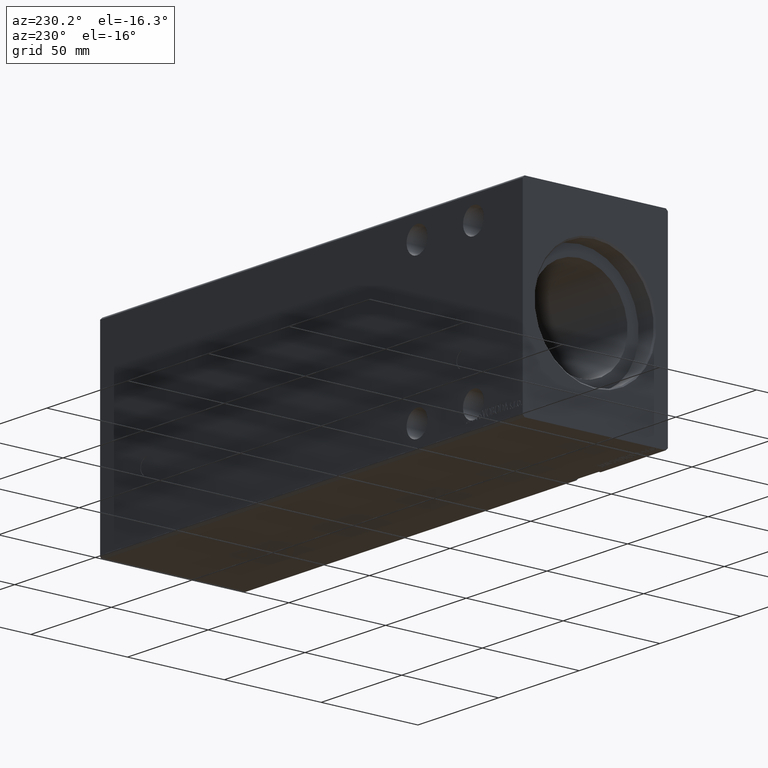
[diagram: clean part render]
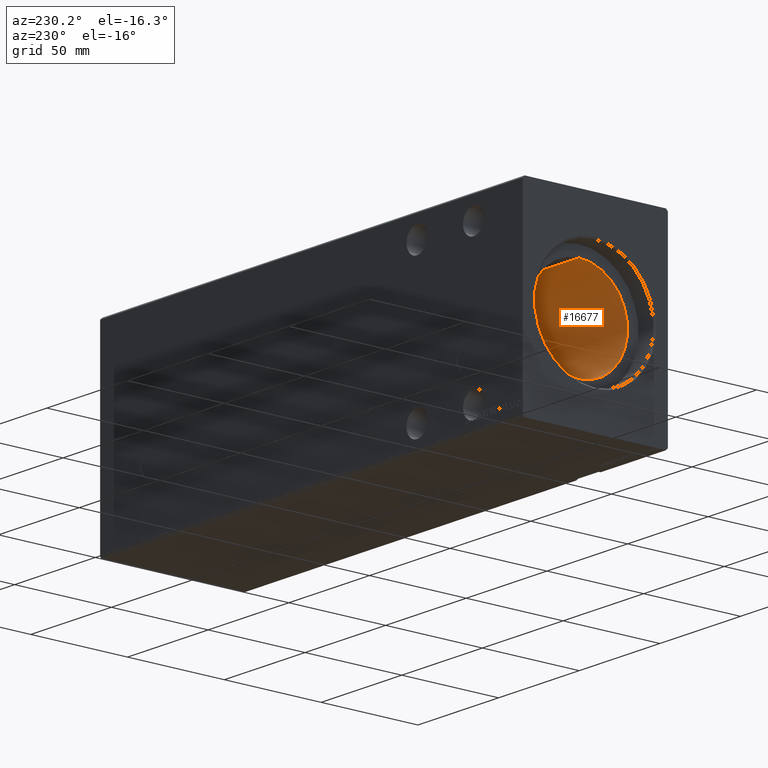
[diagram: same view with one face highlighted and labeled with its STEP entity id]
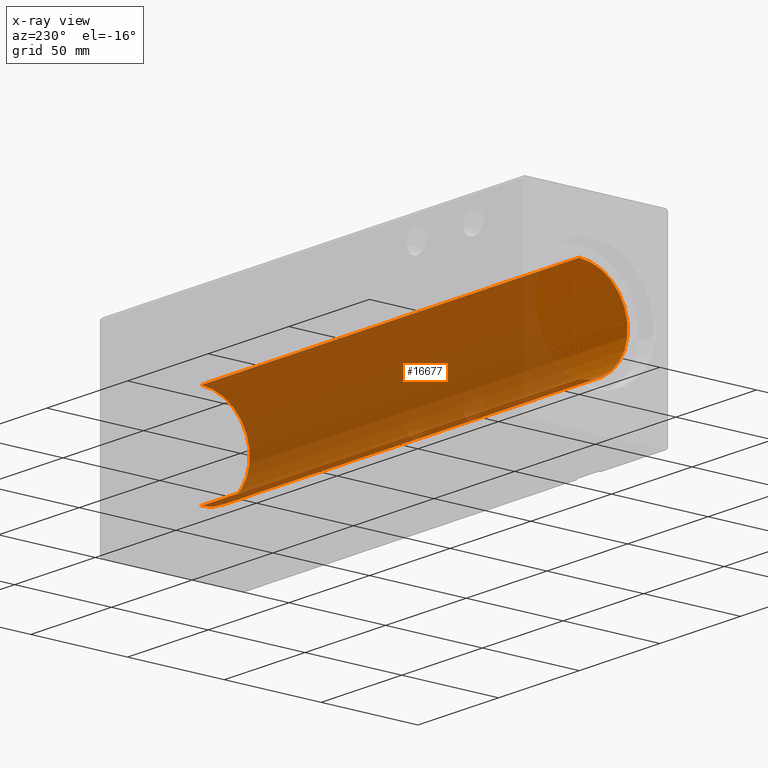
[diagram: x-ray of the same camera — body ghosted, the highlighted face saturated]
A machine part, auxiliary view. The second image highlights one B-rep face of the part: STEP entity #16677.
The next image is the same camera in x-ray: the body ghosted, the highlighted face saturated — about 82% of this face is hidden behind the body in this view.
In plain terms, the highlighted cylindrical surface (partial cylindrical patch) has radius 25 mm, axis along (-1, -0, -0).
Its self-contained STEP definition (entity closure, byte-faithful):
#738 = DIRECTION ( 'NONE',  ( 0.000000000000000000, 0.000000000000000000, 1.000000000000000000 ) ) ;
#2172 = CIRCLE ( 'NONE', #9422, 25.00000000000000000 ) ;
#2179 = LINE ( 'NONE', #27915, #28554 ) ;
#2441 = CARTESIAN_POINT ( 'NONE',  ( 244.1999999999999886, 0.000000000000000000, 25.00000000000000000 ) ) ;
#4103 = CARTESIAN_POINT ( 'NONE',  ( 244.1999999999999886, 3.061616997868382254E-15, -25.00000000000000000 ) ) ;
#7021 = ORIENTED_EDGE ( 'NONE', *, *, #34381, .F. ) ;
#7821 = CARTESIAN_POINT ( 'NONE',  ( 244.1999999999999886, 0.000000000000000000, 25.00000000000000000 ) ) ;
#8092 = CARTESIAN_POINT ( 'NONE',  ( 244.1999999999999886, 0.000000000000000000, 0.000000000000000000 ) ) ;
#8702 = DIRECTION ( 'NONE',  ( -1.000000000000000000, -0.000000000000000000, -0.000000000000000000 ) ) ;
#9422 = AXIS2_PLACEMENT_3D ( 'NONE', #21081, #17989, #36723 ) ;
#9504 = VERTEX_POINT ( 'NONE', #7821 ) ;
#11126 = ORIENTED_EDGE ( 'NONE', *, *, #21614, .T. ) ;
#12691 = LINE ( 'NONE', #2441, #21774 ) ;
#14692 = AXIS2_PLACEMENT_3D ( 'NONE', #18703, #38038, #738 ) ;
#16588 = VERTEX_POINT ( 'NONE', #22731 ) ;
#16677 = ADVANCED_FACE ( 'NONE', ( #24362 ), #36315, .F. ) ;
#17322 = CIRCLE ( 'NONE', #14692, 25.00000000000000000 ) ;
#17905 = EDGE_CURVE ( 'NONE', #27479, #34435, #2179, .T. ) ;
#17989 = DIRECTION ( 'NONE',  ( -1.000000000000000000, 0.000000000000000000, 0.000000000000000000 ) ) ;
#18176 = EDGE_LOOP ( 'NONE', ( #34997, #19390, #11126, #7021 ) ) ;
#18703 = CARTESIAN_POINT ( 'NONE',  ( 244.1999999999999886, 0.000000000000000000, 0.000000000000000000 ) ) ;
#19390 = ORIENTED_EDGE ( 'NONE', *, *, #17905, .T. ) ;
#20940 = DIRECTION ( 'NONE',  ( -1.000000000000000000, -0.000000000000000000, -0.000000000000000000 ) ) ;
#21081 = CARTESIAN_POINT ( 'NONE',  ( 10.00000000000000888, 0.000000000000000000, 0.000000000000000000 ) ) ;
#21181 = EDGE_CURVE ( 'NONE', #27479, #9504, #17322, .T. ) ;
#21614 = EDGE_CURVE ( 'NONE', #34435, #16588, #2172, .T. ) ;
#21774 = VECTOR ( 'NONE', #37809, 1000.000000000000000 ) ;
#22731 = CARTESIAN_POINT ( 'NONE',  ( 10.00000000000000888, 0.000000000000000000, 25.00000000000000000 ) ) ;
#22998 = AXIS2_PLACEMENT_3D ( 'NONE', #8092, #8702, #36518 ) ;
#24362 = FACE_OUTER_BOUND ( 'NONE', #18176, .T. ) ;
#27479 = VERTEX_POINT ( 'NONE', #4103 ) ;
#27915 = CARTESIAN_POINT ( 'NONE',  ( 244.1999999999999886, 3.061616997868382254E-15, -25.00000000000000000 ) ) ;
#28554 = VECTOR ( 'NONE', #20940, 1000.000000000000000 ) ;
#31623 = CARTESIAN_POINT ( 'NONE',  ( 10.00000000000000888, 3.061616997868382254E-15, -25.00000000000000000 ) ) ;
#34381 = EDGE_CURVE ( 'NONE', #9504, #16588, #12691, .T. ) ;
#34435 = VERTEX_POINT ( 'NONE', #31623 ) ;
#34997 = ORIENTED_EDGE ( 'NONE', *, *, #21181, .F. ) ;
#36315 = CYLINDRICAL_SURFACE ( 'NONE', #22998, 25.00000000000000000 ) ;
#36518 = DIRECTION ( 'NONE',  ( 0.000000000000000000, 0.000000000000000000, 1.000000000000000000 ) ) ;
#36723 = DIRECTION ( 'NONE',  ( 0.000000000000000000, 0.000000000000000000, 1.000000000000000000 ) ) ;
#37809 = DIRECTION ( 'NONE',  ( -1.000000000000000000, -0.000000000000000000, -0.000000000000000000 ) ) ;
#38038 = DIRECTION ( 'NONE',  ( -1.000000000000000000, 0.000000000000000000, 0.000000000000000000 ) ) ;